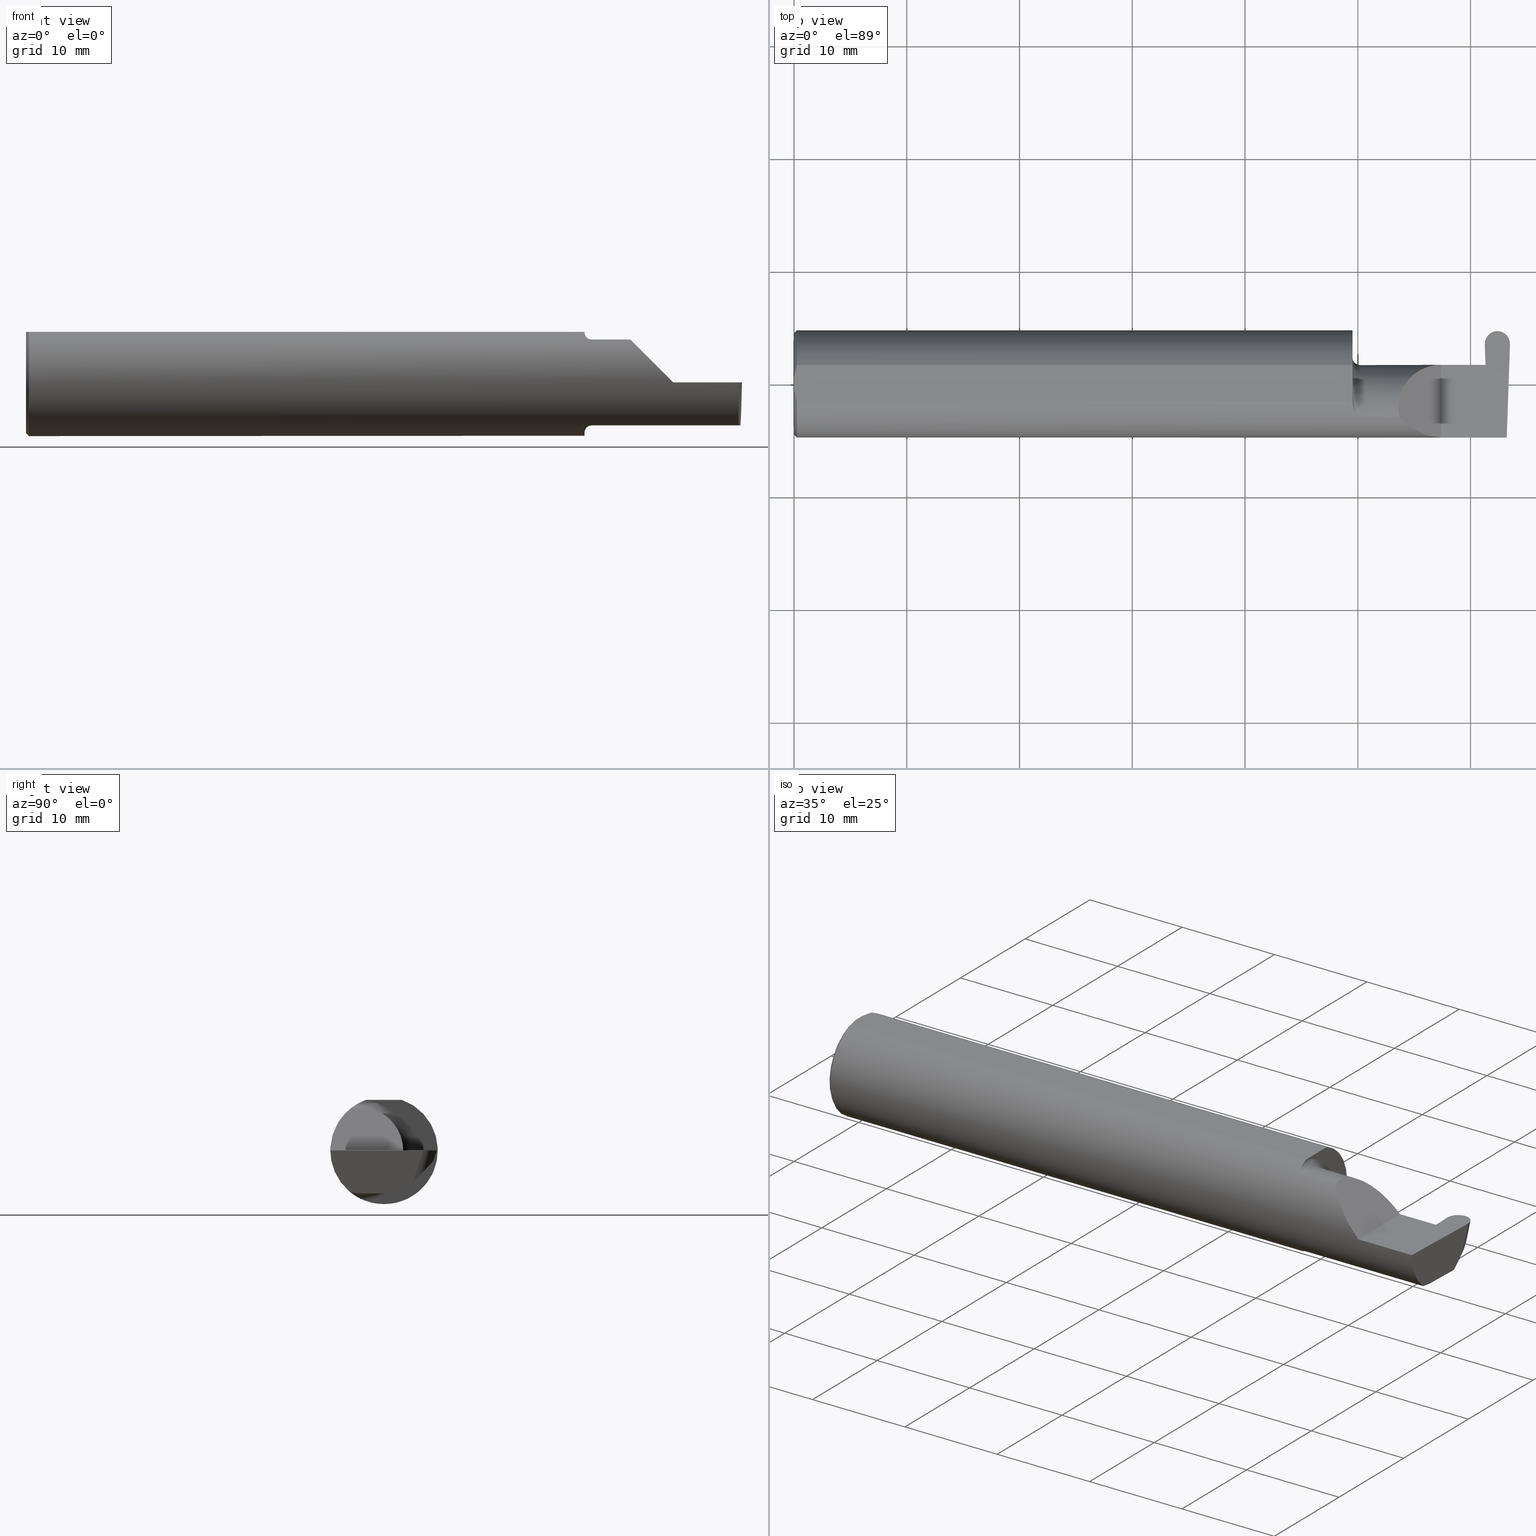
[diagram: canonical four-view strip — front | top / right | iso, engineering-drawing reading convention]
A machine part, canonical four-view strip (front | top / right | iso — engineering-drawing reading convention). The complete STEP part file that produces these views, byte-faithful:
ISO-10303-21;
HEADER;
FILE_DESCRIPTION (( 'STEP AP203' ),
    '1' );
FILE_NAME ('222194-GFR087-8.STEP',
    '2024-06-28T18:15:36',
    ( '' ),
    ( '' ),
    'SwSTEP 2.0',
    'SolidWorks 2024',
    '' );
FILE_SCHEMA (( 'CONFIG_CONTROL_DESIGN' ));
ENDSEC;

DATA;
#1 = AXIS2_PLACEMENT_3D ( 'NONE', #496, #169, #558 ) ;
#2 = DIRECTION ( 'NONE',  ( 1.000000000000000000, 0.000000000000000000, 0.000000000000000000 ) ) ;
#3 = DIRECTION ( 'NONE',  ( -1.000000000000000000, -0.000000000000000000, -0.000000000000000000 ) ) ;
#4 = CARTESIAN_POINT ( 'NONE',  ( 0.001616639753276218755, 0.03405189565400963680, 0.1763499999999999235 ) ) ;
#5 =( NAMED_UNIT ( * ) PLANE_ANGLE_UNIT ( ) SI_UNIT ( $, .RADIAN. ) );
#6 = FACE_OUTER_BOUND ( 'NONE', #566, .T. ) ;
#7 = CARTESIAN_POINT ( 'NONE',  ( 0.000000000000000000, 0.000000000000000000, 0.000000000000000000 ) ) ;
#8 = EDGE_LOOP ( 'NONE', ( #624, #511, #582, #270, #173, #238 ) ) ;
#9 = CARTESIAN_POINT ( 'NONE',  ( 2.193402845000000045, -0.1172600179964006090, -0.1461167706989303927 ) ) ;
#10 = CARTESIAN_POINT ( 'NONE',  ( 2.411832552795360574, 0.1390138764844879860, 0.000000000000000000 ) ) ;
#11 = AXIS2_PLACEMENT_3D ( 'NONE', #24, #469, #87 ) ;
#12 = CC_DESIGN_APPROVAL ( #450, ( #230 ) ) ;
#13 = DIRECTION ( 'NONE',  ( 0.000000000000000000, 0.000000000000000000, -1.000000000000000000 ) ) ;
#14 = CARTESIAN_POINT ( 'NONE',  ( 2.090221225029926355, -0.01530148607434163137, 0.1697787749700727100 ) ) ;
#15 = APPROVAL_DATE_TIME ( #506, #450 ) ;
#16 = VECTOR ( 'NONE', #475, 39.37007874015748143 ) ;
#17 = VECTOR ( 'NONE', #435, 39.37007874015748143 ) ;
#18 = VERTEX_POINT ( 'NONE', #106 ) ;
#19 = CARTESIAN_POINT ( 'NONE',  ( 0.009999999999999346217, 0.000000000000000000, 0.000000000000000000 ) ) ;
#20 = EDGE_CURVE ( 'NONE', #453, #21, #457, .T. ) ;
#21 = VERTEX_POINT ( 'NONE', #423 ) ;
#22 = CARTESIAN_POINT ( 'NONE',  ( 2.456309424548497322, 0.1846500000000000363, 0.000000000000000000 ) ) ;
#23 = VERTEX_POINT ( 'NONE', #534 ) ;
#24 = CARTESIAN_POINT ( 'NONE',  ( 0.009999999999999346217, 0.000000000000000000, 0.000000000000000000 ) ) ;
#25 = CC_DESIGN_PERSON_AND_ORGANIZATION_ASSIGNMENT ( #633, #294, ( #132 ) ) ;
#26 = PERSON_AND_ORGANIZATION ( #690, #40 ) ;
#27 = ORIENTED_EDGE ( 'NONE', *, *, #189, .T. ) ;
#28 = EDGE_CURVE ( 'NONE', #529, #573, #595, .T. ) ;
#29 = ORIENTED_EDGE ( 'NONE', *, *, #62, .T. ) ;
#30 = ORIENTED_EDGE ( 'NONE', *, *, #521, .F. ) ;
#31 = FACE_OUTER_BOUND ( 'NONE', #679, .T. ) ;
#32 = DIRECTION ( 'NONE',  ( -0.01299916717458333461, 0.7070470357949164564, 0.7070470357949245610 ) ) ;
#33 = ORIENTED_EDGE ( 'NONE', *, *, #657, .T. ) ;
#34 = DIRECTION ( 'NONE',  ( 0.000000000000000000, 0.000000000000000000, -1.000000000000000000 ) ) ;
#35 = ORIENTED_EDGE ( 'NONE', *, *, #129, .T. ) ;
#36 = APPLICATION_CONTEXT ( 'configuration controlled 3d designs of mechanical parts and assemblies' ) ;
#37 = CARTESIAN_POINT ( 'NONE',  ( 2.494604638945828956, 0.06030305154315079852, -0.1500000000000000500 ) ) ;
#38 = DIRECTION ( 'NONE',  ( 1.000000000000000000, 0.000000000000000000, 0.000000000000000000 ) ) ;
#39 = ORIENTED_EDGE ( 'NONE', *, *, #202, .T. ) ;
#40 = ORGANIZATION ( 'UNSPECIFIED', 'UNSPECIFIED', '' ) ;
#41 = DIRECTION ( 'NONE',  ( -1.000000000000000000, -3.697236809793670161E-17, -0.000000000000000000 ) ) ;
#42 = EDGE_CURVE ( 'NONE', #261, #334, #204, .T. ) ;
#43 = CARTESIAN_POINT ( 'NONE',  ( 1.969511795768554174, -0.1163687266324233971, -0.1468371510166789906 ) ) ;
#44 = CARTESIAN_POINT ( 'NONE',  ( 1.974999999999999867, -0.1172600179964006228, 0.1461167706989303650 ) ) ;
#45 = CARTESIAN_POINT ( 'NONE',  ( 2.489189135516857831, -0.09477667630339421667, -0.1500000000000000500 ) ) ;
#46 = CARTESIAN_POINT ( 'NONE',  ( 1.949999999999999956, -0.06851976604679065053, -0.1743704796142198643 ) ) ;
#47 = CARTESIAN_POINT ( 'NONE',  ( 2.150065971957465738, -0.1623470442677541759, 0.1099340280425336741 ) ) ;
#48 = CARTESIAN_POINT ( 'NONE',  ( 2.405147528298442694, 0.06655862405286415429, -0.005234924505382223224 ) ) ;
#49 = EDGE_LOOP ( 'NONE', ( #465, #33, #621, #394 ) ) ;
#50 = CARTESIAN_POINT ( 'NONE',  ( 2.733184360054361939, -0.08335000000000006293, -0.1500000000000000500 ) ) ;
#51 = CARTESIAN_POINT ( 'NONE',  ( 2.489588163846105484, -0.08335000000000006293, -0.1500000000000000500 ) ) ;
#52 = AXIS2_PLACEMENT_3D ( 'NONE', #428, #2, #13 ) ;
#53 = ORIENTED_EDGE ( 'NONE', *, *, #306, .T. ) ;
#54 = DIRECTION ( 'NONE',  ( 0.000000000000000000, 1.000000000000000000, 0.000000000000000000 ) ) ;
#55 = VECTOR ( 'NONE', #654, 39.37007874015748143 ) ;
#56 = VECTOR ( 'NONE', #332, 39.37007874015748143 ) ;
#57 = PRODUCT_DEFINITION_SHAPE ( 'NONE', 'NONE',  #230 ) ;
#58 = LINE ( 'NONE', #210, #56 ) ;
#59 = DIRECTION ( 'NONE',  ( 3.697236809793670161E-17, -1.000000000000000000, 0.000000000000000000 ) ) ;
#60 = VERTEX_POINT ( 'NONE', #550 ) ;
#61 = DIRECTION ( 'NONE',  ( 1.000000000000000000, 0.000000000000000000, -0.000000000000000000 ) ) ;
#62 = EDGE_CURVE ( 'NONE', #468, #261, #609, .T. ) ;
#63 = COORDINATED_UNIVERSAL_TIME_OFFSET ( 8, 0, .BEHIND. ) ;
#64 = EDGE_LOOP ( 'NONE', ( #355, #237, #126, #249, #551 ) ) ;
#65 = VECTOR ( 'NONE', #222, 39.37007874015748143 ) ;
#66 = CARTESIAN_POINT ( 'NONE',  ( 2.499906297085412898, 0.1370998259008695541, 0.000000000000000000 ) ) ;
#67 = CARTESIAN_POINT ( 'NONE',  ( 2.155331797197862720, 0.06665000000000004254, 0.1046682028021360955 ) ) ;
#68 = EDGE_CURVE ( 'NONE', #573, #299, #207, .T. ) ;
#69 = EDGE_CURVE ( 'NONE', #248, #405, #433, .T. ) ;
#70 = ORIENTED_EDGE ( 'NONE', *, *, #202, .F. ) ;
#71 = PLANE ( 'NONE',  #176 ) ;
#72 = DIRECTION ( 'NONE',  ( -0.02739170151059987929, -0.3089010440752013587, -0.9506996579664920288 ) ) ;
#73 = ORIENTED_EDGE ( 'NONE', *, *, #466, .T. ) ;
#74 = DIRECTION ( 'NONE',  ( -0.03701744261649742712, -0.7066221440565398915, -0.7066221440565478851 ) ) ;
#75 = APPROVAL_DATE_TIME ( #186, #619 ) ;
#76 = VERTEX_POINT ( 'NONE', #269 ) ;
#77 = AXIS2_PLACEMENT_3D ( 'NONE', #597, #590, #371 ) ;
#78 = CALENDAR_DATE ( 2024, 28, 6 ) ;
#79 = ORIENTED_EDGE ( 'NONE', *, *, #300, .T. ) ;
#80 = CALENDAR_DATE ( 2024, 28, 6 ) ;
#81 = ORIENTED_EDGE ( 'NONE', *, *, #240, .F. ) ;
#82 = CARTESIAN_POINT ( 'NONE',  ( 2.411899392914586659, 0.1370998259008695541, 0.000000000000000000 ) ) ;
#83 = ORIENTED_EDGE ( 'NONE', *, *, #657, .F. ) ;
#84 = LINE ( 'NONE', #596, #330 ) ;
#85 = CONICAL_SURFACE ( 'NONE', #52, 0.1773500000000005072, 0.7853981633974551624 ) ;
#86 = CIRCLE ( 'NONE', #668, 0.1873499999999999888 ) ;
#87 = DIRECTION ( 'NONE',  ( 0.000000000000000000, 0.000000000000000000, -1.000000000000000000 ) ) ;
#88 = EDGE_CURVE ( 'NONE', #18, #490, #632, .T. ) ;
#89 = ORIENTED_EDGE ( 'NONE', *, *, #504, .F. ) ;
#90 = DIRECTION ( 'NONE',  ( 0.000000000000000000, 0.000000000000000000, -1.000000000000000000 ) ) ;
#91 =( BOUNDED_CURVE ( )  B_SPLINE_CURVE ( 3, ( #120, #14, #67, #610 ),
 .UNSPECIFIED., .F., .T. ) 
 B_SPLINE_CURVE_WITH_KNOTS ( ( 4, 4 ),
 ( 6.055147272130142255, 7.853981633974482790 ),
 .UNSPECIFIED. ) 
 CURVE ( )  GEOMETRIC_REPRESENTATION_ITEM ( )  RATIONAL_B_SPLINE_CURVE ( ( 1.000000000000000000, 0.7480442670255268434, 0.7480442670255268434, 1.000000000000000000 ) ) 
 REPRESENTATION_ITEM ( '' )  );
#92 = DIRECTION ( 'NONE',  ( -3.697236809793670161E-17, 1.000000000000000000, 0.000000000000000000 ) ) ;
#93 = CARTESIAN_POINT ( 'NONE',  ( 1.963203859946833552, -0.1120371980050636623, -0.1501764597936560142 ) ) ;
#94 = DIRECTION ( 'NONE',  ( -0.02739170151059987582, -0.3089010440752013587, -0.9506996579664918068 ) ) ;
#95 = ORIENTED_EDGE ( 'NONE', *, *, #369, .T. ) ;
#96 = CARTESIAN_POINT ( 'NONE',  ( 0.000000000000000000, 0.06325108694718235836, 0.1763499999999999235 ) ) ;
#97 = CARTESIAN_POINT ( 'NONE',  ( 1.950358271039143832, -0.07873626113568077400, -0.1700887912276895508 ) ) ;
#98 = CARTESIAN_POINT ( 'NONE',  ( 2.456309424548497322, 0.1846500000000000363, 0.000000000000000000 ) ) ;
#99 = EDGE_CURVE ( 'NONE', #314, #546, #164, .T. ) ;
#100 = VECTOR ( 'NONE', #92, 39.37007874015748143 ) ;
#101 = FACE_OUTER_BOUND ( 'NONE', #578, .T. ) ;
#102 = ORIENTED_EDGE ( 'NONE', *, *, #615, .F. ) ;
#103 = FACE_OUTER_BOUND ( 'NONE', #508, .T. ) ;
#104 = CLOSED_SHELL ( 'NONE', ( #526, #536, #666, #563, #677, #452, #194, #349, #681, #180, #274, #370, #328, #547, #313, #110, #320, #663, #652 ) ) ;
#105 = CARTESIAN_POINT ( 'NONE',  ( 2.496782013450319582, 0.1018667288808076665, -0.1084363226623427101 ) ) ;
#106 = CARTESIAN_POINT ( 'NONE',  ( 0.000000000000000000, 0.01880691362239451242, 0.1763499999999999235 ) ) ;
#107 = CARTESIAN_POINT ( 'NONE',  ( 2.260000000000000231, -0.1873499999999999888, 2.939152317953647352E-17 ) ) ;
#108 = CARTESIAN_POINT ( 'NONE',  ( 2.405208445596533462, 0.06661954135095465857, -0.001744974835127408464 ) ) ;
#109 = DIRECTION ( 'NONE',  ( -0.03489949670249319069, -0.9993908270190959842, 0.000000000000000000 ) ) ;
#110 = ADVANCED_FACE ( 'NONE', ( #216 ), #505, .F. ) ;
#111 = CARTESIAN_POINT ( 'NONE',  ( 2.414359555045604289, 0.06664999999999991764, -9.645561665750322649E-21 ) ) ;
#112 = VECTOR ( 'NONE', #408, 39.37007874015747433 ) ;
#113 = APPLICATION_PROTOCOL_DEFINITION ( 'international standard', 'config_control_design', 1994, #411 ) ;
#114 = FACE_OUTER_BOUND ( 'NONE', #156, .T. ) ;
#115 = DIRECTION ( 'NONE',  ( 0.000000000000000000, 0.000000000000000000, 1.000000000000000000 ) ) ;
#116 = EDGE_CURVE ( 'NONE', #123, #321, #680, .T. ) ;
#117 =( LENGTH_UNIT ( ) NAMED_UNIT ( * ) SI_UNIT ( $, .METRE. ) );
#118 = ORIENTED_EDGE ( 'NONE', *, *, #306, .F. ) ;
#119 = CARTESIAN_POINT ( 'NONE',  ( 1.949999999999999956, -0.06851976604679065053, 0.1743704796142198643 ) ) ;
#120 = CARTESIAN_POINT ( 'NONE',  ( 2.113883229301068312, -0.1172600179964006784, 0.1461167706989302539 ) ) ;
#121 = CARTESIAN_POINT ( 'NONE',  ( 2.455902844999999779, 0.1800649307963962942, -0.01411139200474042545 ) ) ;
#122 = B_SPLINE_CURVE_WITH_KNOTS ( 'NONE', 3,
 ( #48, #253, #108, #702 ),
 .UNSPECIFIED., .F., .F.,
 ( 4, 4 ),
 ( 0.000000000000000000, 1.000000000000000000 ),
 .UNSPECIFIED. ) ;
#123 = VERTEX_POINT ( 'NONE', #227 ) ;
#124 = VECTOR ( 'NONE', #572, 39.37007874015748143 ) ;
#125 = CARTESIAN_POINT ( 'NONE',  ( 1.965004157323697376, -0.1137044537483315743, 0.1489098419202428414 ) ) ;
#126 = ORIENTED_EDGE ( 'NONE', *, *, #116, .F. ) ;
#127 = CARTESIAN_POINT ( 'NONE',  ( 2.411899392914586659, 0.1370998259008695541, 0.000000000000000000 ) ) ;
#128 = ORIENTED_EDGE ( 'NONE', *, *, #674, .F. ) ;
#129 = EDGE_CURVE ( 'NONE', #218, #123, #480, .T. ) ;
#130 = ORIENTED_EDGE ( 'NONE', *, *, #88, .T. ) ;
#131 = VECTOR ( 'NONE', #531, 39.37007874015748143 ) ;
#132 = PRODUCT_DEFINITION_FORMATION_WITH_SPECIFIED_SOURCE ( 'ANY', '', #586, .NOT_KNOWN. ) ;
#133 = PERSON_AND_ORGANIZATION ( #690, #40 ) ;
#134 = ORIENTED_EDGE ( 'NONE', *, *, #580, .T. ) ;
#135 = AXIS2_PLACEMENT_3D ( 'NONE', #462, #193, #406 ) ;
#136 = CARTESIAN_POINT ( 'NONE',  ( 2.411883147359661361, 0.1372830298860648335, 0.0005638438891804070001 ) ) ;
#137 = ORIENTED_EDGE ( 'NONE', *, *, #387, .F. ) ;
#138 = DIRECTION ( 'NONE',  ( -1.000000000000000000, -3.697236809793670161E-17, -0.000000000000000000 ) ) ;
#139 = EDGE_CURVE ( 'NONE', #177, #461, #84, .T. ) ;
#140 = CARTESIAN_POINT ( 'NONE',  ( 0.000000000000000000, -0.06325108694718235836, 0.1763499999999999235 ) ) ;
#141 = ORIENTED_EDGE ( 'NONE', *, *, #615, .T. ) ;
#142 = AXIS2_PLACEMENT_3D ( 'NONE', #614, #115, #61 ) ;
#143 = DIRECTION ( 'NONE',  ( 0.000000000000000000, -0.7071067811865433539, -0.7071067811865515695 ) ) ;
#144 = CARTESIAN_POINT ( 'NONE',  ( 0.000000000000000000, -0.01880691362239451242, 0.1763499999999999235 ) ) ;
#145 = VECTOR ( 'NONE', #109, 39.37007874015748854 ) ;
#146 = CARTESIAN_POINT ( 'NONE',  ( 2.414359555045604289, 0.06664999999999991764, 0.000000000000000000 ) ) ;
#147 = DIRECTION ( 'NONE',  ( 0.000000000000000000, 0.9510565162951533091, -0.3090169943749481729 ) ) ;
#148 = EDGE_LOOP ( 'NONE', ( #482, #640, #499, #228 ) ) ;
#149 = CARTESIAN_POINT ( 'NONE',  ( 0.000000000000000000, 0.000000000000000000, 0.000000000000000000 ) ) ;
#150 = PLANE ( 'NONE',  #398 ) ;
#151 = CARTESIAN_POINT ( 'NONE',  ( 1.952960551809340917, -0.09317341542745735672, -0.1626248379125196930 ) ) ;
#152 = CARTESIAN_POINT ( 'NONE',  ( 2.453653113715916767, 0.2054355468668520590, 0.06397133540329499879 ) ) ;
#153 = AXIS2_PLACEMENT_3D ( 'NONE', #271, #491, #213 ) ;
#154 = LOCAL_TIME ( 11, 15, 36.00000000000000000, #459 ) ;
#155 = CARTESIAN_POINT ( 'NONE',  ( 2.455849646417702203, 0.1388183738650295151, 0.001331749772420890180 ) ) ;
#156 = EDGE_LOOP ( 'NONE', ( #137, #672, #130, #591 ) ) ;
#157 = CC_DESIGN_SECURITY_CLASSIFICATION ( #655, ( #132 ) ) ;
#158 = LINE ( 'NONE', #553, #170 ) ;
#159 = CARTESIAN_POINT ( 'NONE',  ( -0.001039370078740541395, 0.1846500000000000363, 0.000000000000000000 ) ) ;
#160 =( BOUNDED_CURVE ( )  B_SPLINE_CURVE ( 3, ( #589, #471, #698, #641 ),
 .UNSPECIFIED., .F., .T. ) 
 B_SPLINE_CURVE_WITH_KNOTS ( ( 4, 4 ),
 ( 5.852427379562185727, 6.746954780470634461 ),
 .UNSPECIFIED. ) 
 CURVE ( )  GEOMETRIC_REPRESENTATION_ITEM ( )  RATIONAL_B_SPLINE_CURVE ( ( 1.000000000000000000, 0.9344226172588800949, 0.9344226172588800949, 1.000000000000000000 ) ) 
 REPRESENTATION_ITEM ( '' )  );
#161 = CARTESIAN_POINT ( 'NONE',  ( 1.974999999999999867, -0.1172600179964006090, -0.1461167706989303927 ) ) ;
#162 = DIRECTION ( 'NONE',  ( -0.03489949670249400254, 0.9993908270190959842, 0.000000000000000000 ) ) ;
#163 = CARTESIAN_POINT ( 'NONE',  ( 2.454465662695322070, 0.1220110860126060043, -0.05039576335554842024 ) ) ;
#164 = LINE ( 'NONE', #564, #555 ) ;
#165 = DIRECTION ( 'NONE',  ( 1.000000000000000000, -0.000000000000000000, -0.000000000000000000 ) ) ;
#166 = DIRECTION ( 'NONE',  ( 0.000000000000000000, 0.000000000000000000, 1.000000000000000000 ) ) ;
#167 = AXIS2_PLACEMENT_3D ( 'NONE', #319, #38, #705 ) ;
#168 = FACE_OUTER_BOUND ( 'NONE', #148, .T. ) ;
#169 = DIRECTION ( 'NONE',  ( -1.224646799147353947E-16, 0.000000000000000000, -1.000000000000000000 ) ) ;
#170 = VECTOR ( 'NONE', #165, 39.37007874015748143 ) ;
#171 = ORIENTED_EDGE ( 'NONE', *, *, #139, .F. ) ;
#172 = DIRECTION ( 'NONE',  ( -0.9992386149554828290, 0.03489418134010589118, 0.01745240643728358451 ) ) ;
#173 = ORIENTED_EDGE ( 'NONE', *, *, #600, .T. ) ;
#174 = CARTESIAN_POINT ( 'NONE',  ( 2.429140065301251372, 0.1846500000000001473, 8.878101985489642774E-18 ) ) ;
#175 = MANIFOLD_SOLID_BREP ( 'Radii', #104 ) ;
#176 = AXIS2_PLACEMENT_3D ( 'NONE', #293, #229, #446 ) ;
#177 = VERTEX_POINT ( 'NONE', #44 ) ;
#178 = DIRECTION ( 'NONE',  ( -0.01806954526206909148, 0.01744955702544859211, 0.9996844524616943506 ) ) ;
#179 = APPROVAL_PERSON_ORGANIZATION ( #26, #199, #354 ) ;
#180 = ADVANCED_FACE ( 'NONE', ( #585 ), #205, .T. ) ;
#181 = VECTOR ( 'NONE', #706, 39.37007874015748854 ) ;
#182 = ORIENTED_EDGE ( 'NONE', *, *, #575, .F. ) ;
#183 = DATE_AND_TIME ( #78, #154 ) ;
#184 = EDGE_LOOP ( 'NONE', ( #518, #27, #385, #602, #171, #628, #325, #292, #305, #588, #235, #118, #697 ) ) ;
#185 =( BOUNDED_CURVE ( )  B_SPLINE_CURVE ( 3, ( #477, #549, #45, #51 ),
 .UNSPECIFIED., .F., .T. ) 
 B_SPLINE_CURVE_WITH_KNOTS ( ( 4, 4 ),
 ( 0.8789888184544055738, 1.107026853503848773 ),
 .UNSPECIFIED. ) 
 CURVE ( )  GEOMETRIC_REPRESENTATION_ITEM ( )  RATIONAL_B_SPLINE_CURVE ( ( 1.000000000000000000, 0.9956712472009929815, 0.9956712472009929815, 1.000000000000000000 ) ) 
 REPRESENTATION_ITEM ( '' )  );
#186 = DATE_AND_TIME ( #297, #400 ) ;
#187 = VERTEX_POINT ( 'NONE', #37 ) ;
#188 = VECTOR ( 'NONE', #3, 39.37007874015748143 ) ;
#189 = EDGE_CURVE ( 'NONE', #376, #299, #160, .T. ) ;
#190 = DIRECTION ( 'NONE',  ( -1.000000000000000000, -3.697236809793670161E-17, -0.000000000000000000 ) ) ;
#191 = PERSON_AND_ORGANIZATION_ROLE ( 'classification_officer' ) ;
#192 = VERTEX_POINT ( 'NONE', #146 ) ;
#193 = DIRECTION ( 'NONE',  ( 1.000000000000000000, 3.697236809793670161E-17, 0.000000000000000000 ) ) ;
#194 = ADVANCED_FACE ( 'NONE', ( #103 ), #362, .F. ) ;
#195 = CARTESIAN_POINT ( 'NONE',  ( 1.951829077486399555, -0.08839624499054642148, 0.1652742498708037466 ) ) ;
#196 = CALENDAR_DATE ( 2024, 28, 6 ) ;
#197 = ORIENTED_EDGE ( 'NONE', *, *, #478, .F. ) ;
#198 = CARTESIAN_POINT ( 'NONE',  ( 2.415023676549680420, 0.1018667288808076526, -0.1084363226623427379 ) ) ;
#199 = APPROVAL ( #638, 'UNSPECIFIED' ) ;
#200 = DIRECTION ( 'NONE',  ( 0.000000000000000000, 0.000000000000000000, -1.000000000000000000 ) ) ;
#201 = CARTESIAN_POINT ( 'NONE',  ( 0.005151108632379595466, -0.04888864921576189376, 0.1763499999999999235 ) ) ;
#202 = EDGE_CURVE ( 'NONE', #123, #372, #467, .T. ) ;
#203 = DIRECTION ( 'NONE',  ( -0.7071067811865509034, 0.000000000000000000, 0.7071067811865440200 ) ) ;
#204 = LINE ( 'NONE', #417, #55 ) ;
#205 = CYLINDRICAL_SURFACE ( 'NONE', #258, 0.1500000000000000500 ) ;
#206 = DIRECTION ( 'NONE',  ( 0.000000000000000000, -0.7071067811865516806, 0.7071067811865434649 ) ) ;
#207 = LINE ( 'NONE', #209, #145 ) ;
#208 = FACE_OUTER_BOUND ( 'NONE', #605, .T. ) ;
#209 = CARTESIAN_POINT ( 'NONE',  ( 2.499973137204639428, 0.1390138764844880415, 0.000000000000000000 ) ) ;
#210 = CARTESIAN_POINT ( 'NONE',  ( 0.000000000000000000, 0.1873499999999998500, 0.1763499999999999235 ) ) ;
#211 = CARTESIAN_POINT ( 'NONE',  ( 2.412901126908978622, 0.1423838600483241235, -0.06791919149482582296 ) ) ;
#212 = EDGE_LOOP ( 'NONE', ( #233, #420, #265, #79 ) ) ;
#213 = DIRECTION ( 'NONE',  ( 0.000000000000000000, -0.3090169943749481729, -0.9510565162951533091 ) ) ;
#214 = LINE ( 'NONE', #659, #279 ) ;
#215 = CARTESIAN_POINT ( 'NONE',  ( 2.498904563091020492, 0.1423838600483239292, -0.06791919149482598950 ) ) ;
#216 = FACE_OUTER_BOUND ( 'NONE', #8, .T. ) ;
#217 =( NAMED_UNIT ( * ) SI_UNIT ( $, .STERADIAN. ) SOLID_ANGLE_UNIT ( ) );
#218 = VERTEX_POINT ( 'NONE', #98 ) ;
#219 = DIRECTION ( 'NONE',  ( -1.000000000000000000, -3.697236809793670161E-17, -0.000000000000000000 ) ) ;
#220 = CYLINDRICAL_SURFACE ( 'NONE', #244, 0.04399999999999999051 ) ;
#221 = AXIS2_PLACEMENT_3D ( 'NONE', #439, #664, #382 ) ;
#222 = DIRECTION ( 'NONE',  ( -0.03489949670249400948, 0.9993908270190959842, -0.000000000000000000 ) ) ;
#223 = ORIENTED_EDGE ( 'NONE', *, *, #262, .T. ) ;
#224 = CARTESIAN_POINT ( 'NONE',  ( 2.455496265451502236, 0.1846500000000000363, 0.000000000000000000 ) ) ;
#225 = AXIS2_PLACEMENT_3D ( 'NONE', #272, #172, #492 ) ;
#226 = AXIS2_PLACEMENT_3D ( 'NONE', #660, #671, #162 ) ;
#227 = CARTESIAN_POINT ( 'NONE',  ( 2.455902844999999779, 0.1800649307963962942, -0.01411139200474042545 ) ) ;
#228 = ORIENTED_EDGE ( 'NONE', *, *, #683, .T. ) ;
#229 = DIRECTION ( 'NONE',  ( 0.000000000000000000, 0.000000000000000000, 1.000000000000000000 ) ) ;
#230 = PRODUCT_DEFINITION ( 'UNKNOWN', '', #132, #317 ) ;
#231 = CYLINDRICAL_SURFACE ( 'NONE', #528, 0.1873499999999999888 ) ;
#232 = PERSON_AND_ORGANIZATION ( #690, #40 ) ;
#233 = ORIENTED_EDGE ( 'NONE', *, *, #365, .F. ) ;
#234 = FACE_OUTER_BOUND ( 'NONE', #251, .T. ) ;
#235 = ORIENTED_EDGE ( 'NONE', *, *, #561, .F. ) ;
#236 = SHAPE_DEFINITION_REPRESENTATION ( #57, #415 ) ;
#237 = ORIENTED_EDGE ( 'NONE', *, *, #275, .F. ) ;
#238 = ORIENTED_EDGE ( 'NONE', *, *, #683, .F. ) ;
#239 = CARTESIAN_POINT ( 'NONE',  ( 1.958475602106621638, -0.1064978748893404686, 0.1542035505680384444 ) ) ;
#240 = EDGE_CURVE ( 'NONE', #546, #296, #308, .T. ) ;
#241 = DATE_TIME_ROLE ( 'creation_date' ) ;
#242 = ORIENTED_EDGE ( 'NONE', *, *, #600, .F. ) ;
#243 = CIRCLE ( 'NONE', #11, 0.1873499999999999888 ) ;
#244 = AXIS2_PLACEMENT_3D ( 'NONE', #163, #72, #503 ) ;
#245 = PLANE ( 'NONE',  #135 ) ;
#246 = CARTESIAN_POINT ( 'NONE',  ( 2.497044125482537957, 0.1068701584290903256, -0.1034328931140599817 ) ) ;
#247 = APPROVAL_DATE_TIME ( #409, #199 ) ;
#248 = VERTEX_POINT ( 'NONE', #259 ) ;
#249 = ORIENTED_EDGE ( 'NONE', *, *, #129, .F. ) ;
#250 = CARTESIAN_POINT ( 'NONE',  ( 0.009999999999999346217, 0.06325108694718235836, 0.1763499999999999235 ) ) ;
#251 = EDGE_LOOP ( 'NONE', ( #197, #522, #288, #532 ) ) ;
#252 = EDGE_CURVE ( 'NONE', #468, #23, #421, .T. ) ;
#253 = CARTESIAN_POINT ( 'NONE',  ( 2.405177986947488300, 0.06658908270190941336, -0.003489949670254817362 ) ) ;
#254 = ORIENTED_EDGE ( 'NONE', *, *, #561, .T. ) ;
#255 = CARTESIAN_POINT ( 'NONE',  ( 2.455902844999999779, 0.1722946655495198598, -0.03800838599362974662 ) ) ;
#256 = DIRECTION ( 'NONE',  ( 0.000000000000000000, -1.000000000000000000, 0.000000000000000000 ) ) ;
#257 = CARTESIAN_POINT ( 'NONE',  ( 2.415998328610626800, 0.06357628547474564185, -0.09063792740366213851 ) ) ;
#258 = AXIS2_PLACEMENT_3D ( 'NONE', #648, #138, #704 ) ;
#259 = CARTESIAN_POINT ( 'NONE',  ( 0.009999999999999346217, -0.06325108694718235836, 0.1763499999999999235 ) ) ;
#260 = DIRECTION ( 'NONE',  ( -0.03701744261649800999, 0.7066221440565398915, 0.7066221440565479961 ) ) ;
#261 = VERTEX_POINT ( 'NONE', #688 ) ;
#262 = EDGE_CURVE ( 'NONE', #18, #307, #286, .T. ) ;
#263 = CARTESIAN_POINT ( 'NONE',  ( 2.113883229301068312, -0.1172600179964006784, 0.1461167706989302539 ) ) ;
#264 = CARTESIAN_POINT ( 'NONE',  ( -0.001039370078740541395, 0.1723030515431495657, -0.03799999999999999906 ) ) ;
#265 = ORIENTED_EDGE ( 'NONE', *, *, #521, .T. ) ;
#266 = FACE_OUTER_BOUND ( 'NONE', #440, .T. ) ;
#267 = VECTOR ( 'NONE', #32, 39.37007874015748143 ) ;
#268 = DIRECTION ( 'NONE',  ( -1.000000000000000000, -0.000000000000000000, -0.000000000000000000 ) ) ;
#269 = CARTESIAN_POINT ( 'NONE',  ( 1.949999999999999956, -0.06325108694718283020, 0.1763499999999999235 ) ) ;
#270 = ORIENTED_EDGE ( 'NONE', *, *, #189, .F. ) ;
#271 = CARTESIAN_POINT ( 'NONE',  ( -0.001039370078740541395, 0.1846500000000000363, 0.000000000000000000 ) ) ;
#272 = CARTESIAN_POINT ( 'NONE',  ( 2.499973137204639428, 0.1390138764844880415, 0.000000000000000000 ) ) ;
#273 = DIRECTION ( 'NONE',  ( 1.000000000000000000, 3.697236809793670161E-17, 0.000000000000000000 ) ) ;
#274 = ADVANCED_FACE ( 'NONE', ( #31 ), #245, .T. ) ;
#275 = EDGE_CURVE ( 'NONE', #321, #529, #395, .T. ) ;
#276 = PERSON_AND_ORGANIZATION_ROLE ( 'design_owner' ) ;
#277 = VERTEX_POINT ( 'NONE', #198 ) ;
#278 = CARTESIAN_POINT ( 'NONE',  ( 2.488576259503493926, -0.1873499999999999888, 0.000000000000000000 ) ) ;
#279 = VECTOR ( 'NONE', #260, 39.37007874015748143 ) ;
#280 = DIRECTION ( 'NONE',  ( -0.000000000000000000, 1.000000000000000000, -0.000000000000000000 ) ) ;
#281 = CALENDAR_DATE ( 2024, 28, 6 ) ;
#282 = PRODUCT_RELATED_PRODUCT_CATEGORY ( 'detail', '', ( #586 ) ) ;
#283 = ORIENTED_EDGE ( 'NONE', *, *, #643, .T. ) ;
#284 = CARTESIAN_POINT ( 'NONE',  ( 1.952945243422982369, -0.09312071749437422774, 0.1626553472577906556 ) ) ;
#285 =( BOUNDED_CURVE ( )  B_SPLINE_CURVE ( 3, ( #66, #289, #512, #22 ),
 .UNSPECIFIED., .F., .T. ) 
 B_SPLINE_CURVE_WITH_KNOTS ( ( 4, 4 ),
 ( 1.627103621474502049, 3.225696776093220475 ),
 .UNSPECIFIED. ) 
 CURVE ( )  GEOMETRIC_REPRESENTATION_ITEM ( )  RATIONAL_B_SPLINE_CURVE ( ( 1.000000000000000000, 0.7981407609938095948, 0.7981407609938095948, 1.000000000000000000 ) ) 
 REPRESENTATION_ITEM ( '' )  );
#286 = CIRCLE ( 'NONE', #298, 0.1773500000000005072 ) ;
#287 = PERSON_AND_ORGANIZATION ( #690, #40 ) ;
#288 = ORIENTED_EDGE ( 'NONE', *, *, #391, .F. ) ;
#289 = CARTESIAN_POINT ( 'NONE',  ( 2.500873303789769242, 0.1647912748130947180, 3.031548046095857169E-18 ) ) ;
#290 = EDGE_CURVE ( 'NONE', #405, #18, #58, .T. ) ;
#291 = FACE_OUTER_BOUND ( 'NONE', #64, .T. ) ;
#292 = ORIENTED_EDGE ( 'NONE', *, *, #476, .F. ) ;
#293 = CARTESIAN_POINT ( 'NONE',  ( 2.876828993045917215, 0.1873499999999998500, 0.1763499999999999235 ) ) ;
#294 = PERSON_AND_ORGANIZATION_ROLE ( 'design_supplier' ) ;
#295 = AXIS2_PLACEMENT_3D ( 'NONE', #19, #583, #200 ) ;
#296 = VERTEX_POINT ( 'NONE', #386 ) ;
#297 = CALENDAR_DATE ( 2024, 28, 6 ) ;
#298 = AXIS2_PLACEMENT_3D ( 'NONE', #651, #368, #523 ) ;
#299 = VERTEX_POINT ( 'NONE', #278 ) ;
#300 = EDGE_CURVE ( 'NONE', #296, #192, #158, .T. ) ;
#301 = CARTESIAN_POINT ( 'NONE',  ( 0.000000000000000000, 0.000000000000000000, 0.000000000000000000 ) ) ;
#302 = ORIENTED_EDGE ( 'NONE', *, *, #593, .T. ) ;
#303 = DIRECTION ( 'NONE',  ( 1.000000000000000000, 3.697236809793670161E-17, 0.000000000000000000 ) ) ;
#304 = FACE_OUTER_BOUND ( 'NONE', #647, .T. ) ;
#305 = ORIENTED_EDGE ( 'NONE', *, *, #391, .T. ) ;
#306 = EDGE_CURVE ( 'NONE', #21, #682, #351, .T. ) ;
#307 = VERTEX_POINT ( 'NONE', #373 ) ;
#308 = LINE ( 'NONE', #418, #315 ) ;
#309 = CARTESIAN_POINT ( 'NONE',  ( 2.455902844999999779, 0.1722946655495198598, -0.03800838599362974662 ) ) ;
#310 = CARTESIAN_POINT ( 'NONE',  ( 2.417117327835069940, -0.08334999999999997966, -0.1500000000000000500 ) ) ;
#311 = CIRCLE ( 'NONE', #685, 0.1500000000000000500 ) ;
#312 = CARTESIAN_POINT ( 'NONE',  ( -0.001039370078740541395, 0.06030305154315079158, -0.1500000000000000500 ) ) ;
#313 = ADVANCED_FACE ( 'NONE', ( #560 ), #500, .F. ) ;
#314 = VERTEX_POINT ( 'NONE', #107 ) ;
#315 = VECTOR ( 'NONE', #535, 39.37007874015748143 ) ;
#316 = CARTESIAN_POINT ( 'NONE',  ( 2.260000000000000231, -0.1873499999999999888, 2.939152317953647352E-17 ) ) ;
#317 = DESIGN_CONTEXT ( 'detailed design', #411, 'design' ) ;
#318 = EDGE_CURVE ( 'NONE', #340, #468, #548, .T. ) ;
#319 = CARTESIAN_POINT ( 'NONE',  ( 0.000000000000000000, 0.000000000000000000, 0.000000000000000000 ) ) ;
#320 = ADVANCED_FACE ( 'NONE', ( #266 ), #669, .F. ) ;
#321 = VERTEX_POINT ( 'NONE', #487 ) ;
#322 = CARTESIAN_POINT ( 'NONE',  ( 2.455902844999999779, 0.1722946655495198598, -0.03800838599362974662 ) ) ;
#323 = CARTESIAN_POINT ( 'NONE',  ( 2.415023676549680420, 0.1018667288808076526, -0.1084363226623427379 ) ) ;
#324 = CARTESIAN_POINT ( 'NONE',  ( 2.417090374579074386, 0.002105059811797841893, -0.1500000000000000777 ) ) ;
#325 = ORIENTED_EDGE ( 'NONE', *, *, #643, .F. ) ;
#326 = LINE ( 'NONE', #9, #567 ) ;
#327 = LINE ( 'NONE', #10, #65 ) ;
#328 = ADVANCED_FACE ( 'NONE', ( #6 ), #377, .F. ) ;
#329 = LINE ( 'NONE', #111, #486 ) ;
#330 = VECTOR ( 'NONE', #303, 39.37007874015748143 ) ;
#331 = ORIENTED_EDGE ( 'NONE', *, *, #365, .T. ) ;
#332 = DIRECTION ( 'NONE',  ( -0.000000000000000000, 1.000000000000000000, -0.000000000000000000 ) ) ;
#333 = MECHANICAL_CONTEXT ( 'NONE', #36, 'mechanical' ) ;
#334 = VERTEX_POINT ( 'NONE', #494 ) ;
#335 = CARTESIAN_POINT ( 'NONE',  ( 2.455496265451502236, 0.1846500000000000363, 0.000000000000000000 ) ) ;
#336 = AXIS2_PLACEMENT_3D ( 'NONE', #301, #574, #34 ) ;
#337 = CARTESIAN_POINT ( 'NONE',  ( 1.974999999999999867, -0.08334999999999999354, 0.000000000000000000 ) ) ;
#338 = LOCAL_TIME ( 11, 15, 36.00000000000000000, #404 ) ;
#339 = CARTESIAN_POINT ( 'NONE',  ( 2.455902844999999779, 0.1774764172755834701, -0.02207801745350155415 ) ) ;
#340 = VERTEX_POINT ( 'NONE', #380 ) ;
#341 = CARTESIAN_POINT ( 'NONE',  ( 2.414604620902816468, 0.1945090424343657032, -0.01579400910878360140 ) ) ;
#342 = CARTESIAN_POINT ( 'NONE',  ( 1.949999999999999956, 0.06325108694718235836, 0.1763499999999999235 ) ) ;
#343 = ORIENTED_EDGE ( 'NONE', *, *, #88, .F. ) ;
#344 = CARTESIAN_POINT ( 'NONE',  ( 1.949999999999999956, -0.08334999999999999354, 0.000000000000000000 ) ) ;
#345 = ORIENTED_EDGE ( 'NONE', *, *, #629, .T. ) ;
#346 = COORDINATED_UNIVERSAL_TIME_OFFSET ( 8, 0, .BEHIND. ) ;
#347 = AXIS2_PLACEMENT_3D ( 'NONE', #155, #533, #147 ) ;
#348 = ORIENTED_EDGE ( 'NONE', *, *, #240, .T. ) ;
#349 = ADVANCED_FACE ( 'NONE', ( #114 ), #85, .T. ) ;
#350 = PERSON_AND_ORGANIZATION_ROLE ( 'creator' ) ;
#351 = CIRCLE ( 'NONE', #579, 0.1873499999999999888 ) ;
#352 = VERTEX_POINT ( 'NONE', #607 ) ;
#353 = CARTESIAN_POINT ( 'NONE',  ( 1.972161949849308593, -0.1172600179964061462, 0.1461167706989260351 ) ) ;
#354 = APPROVAL_ROLE ( '' ) ;
#355 = ORIENTED_EDGE ( 'NONE', *, *, #28, .F. ) ;
#356 = CARTESIAN_POINT ( 'NONE',  ( 2.454465662695322070, 0.1638575727295927265, -0.06399251110804612952 ) ) ;
#357 = PERSON_AND_ORGANIZATION ( #690, #40 ) ;
#358 = EDGE_LOOP ( 'NONE', ( #634, #427, #448, #367, #81, #401, #383, #361, #410 ) ) ;
#359 = AXIS2_PLACEMENT_3D ( 'NONE', #483, #662, #432 ) ;
#360 = CYLINDRICAL_SURFACE ( 'NONE', #347, 0.04399999999999999051 ) ;
#361 = ORIENTED_EDGE ( 'NONE', *, *, #68, .F. ) ;
#362 = PLANE ( 'NONE',  #443 ) ;
#363 = CARTESIAN_POINT ( 'NONE',  ( 1.974999999999999867, -0.08334999999999999354, 0.000000000000000000 ) ) ;
#364 = CARTESIAN_POINT ( 'NONE',  ( 1.965028532764137914, -0.1137241120808233780, -0.1488947809299405178 ) ) ;
#365 = EDGE_CURVE ( 'NONE', #261, #192, #329, .T. ) ;
#366 = CARTESIAN_POINT ( 'NONE',  ( 1.949999999999999956, 0.1873499999999998222, 0.1763499999999999235 ) ) ;
#367 = ORIENTED_EDGE ( 'NONE', *, *, #300, .F. ) ;
#368 = DIRECTION ( 'NONE',  ( -1.000000000000000000, -0.000000000000000000, -0.000000000000000000 ) ) ;
#369 = EDGE_CURVE ( 'NONE', #376, #453, #326, .T. ) ;
#370 = ADVANCED_FACE ( 'NONE', ( #168 ), #384, .F. ) ;
#371 = DIRECTION ( 'NONE',  ( 0.000000000000000000, -0.01745240643728358451, -0.9998476951563912696 ) ) ;
#372 = VERTEX_POINT ( 'NONE', #224 ) ;
#373 = CARTESIAN_POINT ( 'NONE',  ( 0.000000000000000000, 0.000000000000000000, -0.1773500000000005072 ) ) ;
#374 = DIRECTION ( 'NONE',  ( 0.000000000000000000, 1.000000000000000000, 0.000000000000000000 ) ) ;
#375 = CARTESIAN_POINT ( 'NONE',  ( 2.499922542640338197, 0.1372830298860648612, 0.0005638438891804186011 ) ) ;
#376 = VERTEX_POINT ( 'NONE', #441 ) ;
#377 = PLANE ( 'NONE',  #153 ) ;
#378 = DIRECTION ( 'NONE',  ( -1.000000000000000000, -3.697236809793670161E-17, -0.000000000000000000 ) ) ;
#379 = EDGE_CURVE ( 'NONE', #314, #461, #635, .T. ) ;
#380 = CARTESIAN_POINT ( 'NONE',  ( 2.489588163846105484, -0.08335000000000006293, -0.1500000000000000500 ) ) ;
#381 = VECTOR ( 'NONE', #74, 39.37007874015748854 ) ;
#382 = DIRECTION ( 'NONE',  ( 1.000000000000000000, 0.000000000000000000, 0.000000000000000000 ) ) ;
#383 = ORIENTED_EDGE ( 'NONE', *, *, #612, .F. ) ;
#384 = PLANE ( 'NONE',  #142 ) ;
#385 = ORIENTED_EDGE ( 'NONE', *, *, #612, .T. ) ;
#386 = CARTESIAN_POINT ( 'NONE',  ( 2.405238904245578624, 0.06664999999999991764, 0.000000000000000000 ) ) ;
#387 = EDGE_CURVE ( 'NONE', #307, #352, #618, .T. ) ;
#388 = FACE_OUTER_BOUND ( 'NONE', #358, .T. ) ;
#389 = ORIENTED_EDGE ( 'NONE', *, *, #290, .F. ) ;
#390 = CARTESIAN_POINT ( 'NONE',  ( 1.969481469043492750, -0.1163560528186165510, 0.1468472430636323378 ) ) ;
#391 = EDGE_CURVE ( 'NONE', #248, #352, #243, .T. ) ;
#392 = ORIENTED_EDGE ( 'NONE', *, *, #99, .T. ) ;
#393 = LINE ( 'NONE', #246, #381 ) ;
#394 = ORIENTED_EDGE ( 'NONE', *, *, #466, .F. ) ;
#395 =( BOUNDED_CURVE ( )  B_SPLINE_CURVE ( 3, ( #322, #656, #215, #608 ),
 .UNSPECIFIED., .F., .T. ) 
 B_SPLINE_CURVE_WITH_KNOTS ( ( 4, 4 ),
 ( 3.143280914105126556, 4.726229945297543367 ),
 .UNSPECIFIED. ) 
 CURVE ( )  GEOMETRIC_REPRESENTATION_ITEM ( )  RATIONAL_B_SPLINE_CURVE ( ( 1.000000000000000000, 0.8018647492693391499, 0.8018647492693391499, 1.000000000000000000 ) ) 
 REPRESENTATION_ITEM ( '' )  );
#396 = ORIENTED_EDGE ( 'NONE', *, *, #379, .F. ) ;
#397 = EDGE_CURVE ( 'NONE', #473, #277, #449, .T. ) ;
#398 = AXIS2_PLACEMENT_3D ( 'NONE', #488, #545, #203 ) ;
#399 = PERSON_AND_ORGANIZATION_ROLE ( 'creator' ) ;
#400 = LOCAL_TIME ( 11, 15, 36.00000000000000000, #346 ) ;
#401 = ORIENTED_EDGE ( 'NONE', *, *, #99, .F. ) ;
#402 = CC_DESIGN_DATE_AND_TIME_ASSIGNMENT ( #520, #692, ( #655 ) ) ;
#403 = DIRECTION ( 'NONE',  ( 0.000000000000000000, -1.000000000000000000, 0.000000000000000000 ) ) ;
#404 = COORDINATED_UNIVERSAL_TIME_OFFSET ( 8, 0, .BEHIND. ) ;
#405 = VERTEX_POINT ( 'NONE', #673 ) ;
#406 = DIRECTION ( 'NONE',  ( -3.697236809793670161E-17, 1.000000000000000000, 0.000000000000000000 ) ) ;
#407 = EDGE_CURVE ( 'NONE', #372, #473, #658, .T. ) ;
#408 = DIRECTION ( 'NONE',  ( 0.02739170151060012562, -0.3089010440752013031, -0.9506996579664920288 ) ) ;
#409 = DATE_AND_TIME ( #196, #611 ) ;
#410 = ORIENTED_EDGE ( 'NONE', *, *, #507, .T. ) ;
#411 = APPLICATION_CONTEXT ( 'configuration controlled 3d designs of mechanical parts and assemblies' ) ;
#412 = EDGE_CURVE ( 'NONE', #352, #490, #517, .T. ) ;
#413 = CARTESIAN_POINT ( 'NONE',  ( 1.963163223656403389, -0.1119926267047276353, 0.1502091925606063583 ) ) ;
#414 = ORIENTED_EDGE ( 'NONE', *, *, #442, .T. ) ;
#415 = ADVANCED_BREP_SHAPE_REPRESENTATION ( '222194-GFR087-8', ( #175, #221 ), #460 ) ;
#416 = LINE ( 'NONE', #366, #100 ) ;
#417 = CARTESIAN_POINT ( 'NONE',  ( 1.949999999999999956, 0.06655862405286419592, -0.005234924505381327239 ) ) ;
#418 = CARTESIAN_POINT ( 'NONE',  ( 1.949999999999999956, 0.06665000000000002867, 6.735557395310446214E-17 ) ) ;
#419 = DIRECTION ( 'NONE',  ( 1.000000000000000000, -0.000000000000000000, -0.000000000000000000 ) ) ;
#420 = ORIENTED_EDGE ( 'NONE', *, *, #42, .T. ) ;
#421 = LINE ( 'NONE', #694, #16 ) ;
#422 = CARTESIAN_POINT ( 'NONE',  ( 2.260000000000000231, 0.06665000000000002867, 6.735557395310446214E-17 ) ) ;
#423 = CARTESIAN_POINT ( 'NONE',  ( 1.949999999999999956, -0.06851976604679065053, -0.1743704796142198643 ) ) ;
#424 = DIRECTION ( 'NONE',  ( 0.7071067811865426878, 0.000000000000000000, -0.7071067811865523467 ) ) ;
#425 = LINE ( 'NONE', #642, #188 ) ;
#426 = ORIENTED_EDGE ( 'NONE', *, *, #580, .F. ) ;
#427 = ORIENTED_EDGE ( 'NONE', *, *, #407, .T. ) ;
#428 = CARTESIAN_POINT ( 'NONE',  ( 0.000000000000000000, 0.000000000000000000, 0.000000000000000000 ) ) ;
#429 =( BOUNDED_CURVE ( )  B_SPLINE_CURVE ( 3, ( #323, #211, #541, #309 ),
 .UNSPECIFIED., .F., .T. ) 
 B_SPLINE_CURVE_WITH_KNOTS ( ( 4, 4 ),
 ( 1.556955361882042199, 3.139904393074466338 ),
 .UNSPECIFIED. ) 
 CURVE ( )  GEOMETRIC_REPRESENTATION_ITEM ( )  RATIONAL_B_SPLINE_CURVE ( ( 1.000000000000000000, 0.8018647492693373735, 0.8018647492693373735, 1.000000000000000000 ) ) 
 REPRESENTATION_ITEM ( '' )  );
#430 = EDGE_CURVE ( 'NONE', #529, #187, #393, .T. ) ;
#431 =( CONVERSION_BASED_UNIT ( 'INCH', #510 ) LENGTH_UNIT ( ) NAMED_UNIT ( #495 ) );
#432 = DIRECTION ( 'NONE',  ( 0.01806679408117492502, 0.000000000000000000, -0.9998367821557817559 ) ) ;
#433 = B_SPLINE_CURVE_WITH_KNOTS ( 'NONE', 3,
 ( #489, #201, #644, #144 ),
 .UNSPECIFIED., .F., .F.,
 ( 4, 4 ),
 ( 0.009771445421851449736, 0.01092787937989102981 ),
 .UNSPECIFIED. ) ;
#434 = ORIENTED_EDGE ( 'NONE', *, *, #442, .F. ) ;
#435 = DIRECTION ( 'NONE',  ( -1.000000000000000000, -0.000000000000000000, -0.000000000000000000 ) ) ;
#436 = UNCERTAINTY_MEASURE_WITH_UNIT (LENGTH_MEASURE( 1.000000000000000082E-05 ), #431, 'distance_accuracy_value', 'NONE');
#437 = AXIS2_PLACEMENT_3D ( 'NONE', #344, #190, #403 ) ;
#438 = LOCAL_TIME ( 11, 15, 36.00000000000000000, #63 ) ;
#439 = CARTESIAN_POINT ( 'NONE',  ( 0.000000000000000000, 0.000000000000000000, 0.000000000000000000 ) ) ;
#440 = EDGE_LOOP ( 'NONE', ( #29, #434, #89, #556 ) ) ;
#441 = CARTESIAN_POINT ( 'NONE',  ( 2.488471823259917226, -0.1172600179964005951, -0.1461167706989303927 ) ) ;
#442 = EDGE_CURVE ( 'NONE', #515, #261, #676, .T. ) ;
#443 = AXIS2_PLACEMENT_3D ( 'NONE', #149, #530, #90 ) ;
#444 = LINE ( 'NONE', #616, #124 ) ;
#445 = ORIENTED_EDGE ( 'NONE', *, *, #695, .T. ) ;
#446 = DIRECTION ( 'NONE',  ( 1.000000000000000000, 0.000000000000000000, -0.000000000000000000 ) ) ;
#447 = APPROVAL_STATUS ( 'not_yet_approved' ) ;
#448 = ORIENTED_EDGE ( 'NONE', *, *, #695, .F. ) ;
#449 = LINE ( 'NONE', #136, #112 ) ;
#450 = APPROVAL ( #447, 'UNSPECIFIED' ) ;
#451 = EDGE_LOOP ( 'NONE', ( #95, #83, #708, #613, #348, #30, #626, #639, #667, #242 ) ) ;
#452 = ADVANCED_FACE ( 'NONE', ( #304 ), #71, .T. ) ;
#453 = VERTEX_POINT ( 'NONE', #516 ) ;
#454 = PERSON_AND_ORGANIZATION ( #690, #40 ) ;
#455 = EDGE_LOOP ( 'NONE', ( #128, #396, #392 ) ) ;
#456 = CC_DESIGN_DATE_AND_TIME_ASSIGNMENT ( #183, #241, ( #230 ) ) ;
#457 = B_SPLINE_CURVE_WITH_KNOTS ( 'NONE', 3,
 ( #161, #485, #43, #364, #93, #700, #539, #151, #650, #97, #598, #46 ),
 .UNSPECIFIED., .F., .F.,
 ( 4, 2, 2, 2, 2, 4 ),
 ( 1.967976973726874814E-07, 0.0002120314145722335065, 0.0004238660314470942881, 0.0008475352651968041419, 0.001271204498946514050, 0.001694873732696223741 ),
 .UNSPECIFIED. ) ;
#458 = CARTESIAN_POINT ( 'NONE',  ( 2.414359555045604289, 0.06664999999999991764, -9.645561665750322649E-21 ) ) ;
#459 = COORDINATED_UNIVERSAL_TIME_OFFSET ( 8, 0, .BEHIND. ) ;
#460 =( GEOMETRIC_REPRESENTATION_CONTEXT ( 3 ) GLOBAL_UNCERTAINTY_ASSIGNED_CONTEXT ( ( #436 ) ) GLOBAL_UNIT_ASSIGNED_CONTEXT ( ( #431, #5, #217 ) ) REPRESENTATION_CONTEXT ( 'NONE', 'WORKASPACE' ) );
#461 = VERTEX_POINT ( 'NONE', #625 ) ;
#462 = CARTESIAN_POINT ( 'NONE',  ( 1.949999999999999956, 0.1873499999999999055, 0.000000000000000000 ) ) ;
#463 = CARTESIAN_POINT ( 'NONE',  ( 1.949999999999999512, -0.07367581953296697961, 0.1723443821957854061 ) ) ;
#464 = APPROVAL_ROLE ( '' ) ;
#465 = ORIENTED_EDGE ( 'NONE', *, *, #498, .T. ) ;
#466 = EDGE_CURVE ( 'NONE', #60, #21, #552, .T. ) ;
#467 = LINE ( 'NONE', #152, #601 ) ;
#468 = VERTEX_POINT ( 'NONE', #691 ) ;
#469 = DIRECTION ( 'NONE',  ( 1.000000000000000000, 0.000000000000000000, 0.000000000000000000 ) ) ;
#470 = ORIENTED_EDGE ( 'NONE', *, *, #397, .F. ) ;
#471 = CARTESIAN_POINT ( 'NONE',  ( 2.487529306701961485, -0.1623470442677540093, -0.1099340280425339378 ) ) ;
#472 = FACE_OUTER_BOUND ( 'NONE', #212, .T. ) ;
#473 = VERTEX_POINT ( 'NONE', #127 ) ;
#474 = CONICAL_SURFACE ( 'NONE', #167, 0.1773500000000005072, 0.7853981633974551624 ) ;
#475 = DIRECTION ( 'NONE',  ( -0.0003154085283454300553, 0.9999999502587288980, 0.000000000000000000 ) ) ;
#476 = EDGE_CURVE ( 'NONE', #248, #76, #637, .T. ) ;
#477 = CARTESIAN_POINT ( 'NONE',  ( 2.488471823259917226, -0.1172600179964005951, -0.1461167706989303927 ) ) ;
#478 = EDGE_CURVE ( 'NONE', #307, #405, #665, .T. ) ;
#479 = ORIENTED_EDGE ( 'NONE', *, *, #407, .F. ) ;
#480 = LINE ( 'NONE', #356, #636 ) ;
#481 = LINE ( 'NONE', #159, #684 ) ;
#482 = ORIENTED_EDGE ( 'NONE', *, *, #318, .T. ) ;
#483 = CARTESIAN_POINT ( 'NONE',  ( 2.417363697998881733, -2.354248658836814556, -0.1239957194858760936 ) ) ;
#484 = PLANE ( 'NONE',  #577 ) ;
#485 = CARTESIAN_POINT ( 'NONE',  ( 1.972174967710399685, -0.1172600179964005812, -0.1461167706989304482 ) ) ;
#486 = VECTOR ( 'NONE', #557, 39.37007874015748143 ) ;
#487 = CARTESIAN_POINT ( 'NONE',  ( 2.455902844999999779, 0.1722946655495198598, -0.03800838599362974662 ) ) ;
#488 = CARTESIAN_POINT ( 'NONE',  ( 2.260000000000000231, -0.2500000000000000555, 2.939152317953647352E-17 ) ) ;
#489 = CARTESIAN_POINT ( 'NONE',  ( 0.009999999999999346217, -0.06325108694718235836, 0.1763499999999999235 ) ) ;
#490 = VERTEX_POINT ( 'NONE', #250 ) ;
#491 = DIRECTION ( 'NONE',  ( 0.000000000000000000, -0.9510565162951534202, 0.3090169943749482284 ) ) ;
#492 = DIRECTION ( 'NONE',  ( -0.03489949670249319069, -0.9993908270190959842, 0.000000000000000000 ) ) ;
#493 = CC_DESIGN_PERSON_AND_ORGANIZATION_ASSIGNMENT ( #287, #276, ( #586 ) ) ;
#494 = CARTESIAN_POINT ( 'NONE',  ( 2.405147528298442694, 0.06655862405286415429, -0.005234924505382223224 ) ) ;
#495 = DIMENSIONAL_EXPONENTS ( 1.000000000000000000, 0.000000000000000000, 0.000000000000000000, 0.000000000000000000, 0.000000000000000000, 0.000000000000000000, 0.000000000000000000 ) ;
#496 = CARTESIAN_POINT ( 'NONE',  ( 2.500000000000000000, -0.2500000000000000555, 0.000000000000000000 ) ) ;
#497 = CARTESIAN_POINT ( 'NONE',  ( 0.005155213631852355663, 0.04890080824240217866, 0.1763499999999999235 ) ) ;
#498 = EDGE_CURVE ( 'NONE', #60, #177, #513, .T. ) ;
#499 = ORIENTED_EDGE ( 'NONE', *, *, #575, .T. ) ;
#500 = PLANE ( 'NONE',  #226 ) ;
#501 = VECTOR ( 'NONE', #424, 39.37007874015748143 ) ;
#502 = AXIS2_PLACEMENT_3D ( 'NONE', #337, #378, #59 ) ;
#503 = DIRECTION ( 'NONE',  ( 0.000000000000000000, 0.9510565162951533091, -0.3090169943749481174 ) ) ;
#504 = EDGE_CURVE ( 'NONE', #23, #515, #622, .T. ) ;
#505 = PLANE ( 'NONE',  #225 ) ;
#506 = DATE_AND_TIME ( #281, #438 ) ;
#507 = EDGE_CURVE ( 'NONE', #573, #218, #285, .T. ) ;
#508 = EDGE_LOOP ( 'NONE', ( #543, #223, #576 ) ) ;
#509 = PLANE ( 'NONE',  #1 ) ;
#510 = LENGTH_MEASURE_WITH_UNIT ( LENGTH_MEASURE( 0.02539999999999999897 ), #117 );
#511 = ORIENTED_EDGE ( 'NONE', *, *, #28, .T. ) ;
#512 = CARTESIAN_POINT ( 'NONE',  ( 2.482665624698748186, 0.1846499999999999253, 5.261345637967953601E-18 ) ) ;
#513 = B_SPLINE_CURVE_WITH_KNOTS ( 'NONE', 3,
 ( #119, #463, #696, #195, #284, #686, #239, #413, #125, #390, #353, #525 ),
 .UNSPECIFIED., .F., .F.,
 ( 4, 2, 2, 2, 2, 4 ),
 ( 4.423516731080748054E-05, 0.0004615475116586696745, 0.0008788598560065318888, 0.001296172200354394049, 0.001504828372528325400, 0.001713484544702256968 ),
 .UNSPECIFIED. ) ;
#514 = PERSON_AND_ORGANIZATION ( #690, #40 ) ;
#515 = VERTEX_POINT ( 'NONE', #571 ) ;
#516 = CARTESIAN_POINT ( 'NONE',  ( 1.974999999999999867, -0.1172600179964006090, -0.1461167706989303927 ) ) ;
#517 = CIRCLE ( 'NONE', #295, 0.1873499999999999888 ) ;
#518 = ORIENTED_EDGE ( 'NONE', *, *, #369, .F. ) ;
#519 = ORIENTED_EDGE ( 'NONE', *, *, #397, .T. ) ;
#520 = DATE_AND_TIME ( #80, #338 ) ;
#521 = EDGE_CURVE ( 'NONE', #334, #296, #122, .T. ) ;
#522 = ORIENTED_EDGE ( 'NONE', *, *, #387, .T. ) ;
#523 = DIRECTION ( 'NONE',  ( 0.000000000000000000, 0.000000000000000000, -1.000000000000000000 ) ) ;
#524 = VECTOR ( 'NONE', #178, 39.37007874015748143 ) ;
#525 = CARTESIAN_POINT ( 'NONE',  ( 1.974999999999999867, -0.1172600179964006228, 0.1461167706989303650 ) ) ;
#526 = ADVANCED_FACE ( 'NONE', ( #234 ), #474, .T. ) ;
#527 = COORDINATED_UNIVERSAL_TIME_OFFSET ( 8, 0, .BEHIND. ) ;
#528 = AXIS2_PLACEMENT_3D ( 'NONE', #7, #620, #166 ) ;
#529 = VERTEX_POINT ( 'NONE', #105 ) ;
#530 = DIRECTION ( 'NONE',  ( 1.000000000000000000, 0.000000000000000000, 0.000000000000000000 ) ) ;
#531 = DIRECTION ( 'NONE',  ( 1.000000000000000000, 0.000000000000000000, 0.000000000000000000 ) ) ;
#532 = ORIENTED_EDGE ( 'NONE', *, *, #69, .T. ) ;
#533 = DIRECTION ( 'NONE',  ( 0.02739170151060012909, -0.3089010440752013031, -0.9506996579664919178 ) ) ;
#534 = CARTESIAN_POINT ( 'NONE',  ( 2.417072018435237002, 0.06030305154315079852, -0.1500000000000000500 ) ) ;
#535 = DIRECTION ( 'NONE',  ( 1.000000000000000000, 3.697236809793670161E-17, 0.000000000000000000 ) ) ;
#536 = ADVANCED_FACE ( 'NONE', ( #472 ), #649, .F. ) ;
#537 = DIRECTION ( 'NONE',  ( 1.000000000000000000, -0.000000000000000000, -0.000000000000000000 ) ) ;
#538 = VECTOR ( 'NONE', #419, 39.37007874015748143 ) ;
#539 = CARTESIAN_POINT ( 'NONE',  ( 1.956304331342286762, -0.1022198306720690231, -0.1570962426853819704 ) ) ;
#540 = TOROIDAL_SURFACE ( 'NONE', #502, 0.1749999999999999889, 0.02499999999999993894 ) ;
#541 = CARTESIAN_POINT ( 'NONE',  ( 2.429894503280563445, 0.1716605914559114487, -0.03864246008723814380 ) ) ;
#542 = CC_DESIGN_PERSON_AND_ORGANIZATION_ASSIGNMENT ( #514, #191, ( #655 ) ) ;
#543 = ORIENTED_EDGE ( 'NONE', *, *, #290, .T. ) ;
#544 = CARTESIAN_POINT ( 'NONE',  ( 2.202189699843949189, -0.1873500000000000998, 0.05781030015605102129 ) ) ;
#545 = DIRECTION ( 'NONE',  ( -0.7071067811865441310, 0.000000000000000000, -0.7071067811865510144 ) ) ;
#546 = VERTEX_POINT ( 'NONE', #422 ) ;
#547 = ADVANCED_FACE ( 'NONE', ( #101 ), #484, .F. ) ;
#548 = LINE ( 'NONE', #50, #17 ) ;
#549 = CARTESIAN_POINT ( 'NONE',  ( 2.488815404197634251, -0.1061291577212408743, -0.1486999626928446339 ) ) ;
#550 = CARTESIAN_POINT ( 'NONE',  ( 1.949999999999999956, -0.06851976604679065053, 0.1743704796142198643 ) ) ;
#551 = ORIENTED_EDGE ( 'NONE', *, *, #507, .F. ) ;
#552 = CIRCLE ( 'NONE', #437, 0.1749999999999999889 ) ;
#553 = CARTESIAN_POINT ( 'NONE',  ( 2.414359555045604289, 0.06664999999999991764, 0.000000000000000000 ) ) ;
#554 = FACE_OUTER_BOUND ( 'NONE', #184, .T. ) ;
#555 = VECTOR ( 'NONE', #280, 39.37007874015748143 ) ;
#556 = ORIENTED_EDGE ( 'NONE', *, *, #252, .F. ) ;
#557 = DIRECTION ( 'NONE',  ( -0.01806954526206909148, 0.01744955702544859211, 0.9996844524616943506 ) ) ;
#558 = DIRECTION ( 'NONE',  ( -1.000000000000000000, 0.000000000000000000, 1.224646799147353947E-16 ) ) ;
#559 = ORIENTED_EDGE ( 'NONE', *, *, #116, .T. ) ;
#560 = FACE_OUTER_BOUND ( 'NONE', #678, .T. ) ;
#561 = EDGE_CURVE ( 'NONE', #682, #490, #594, .T. ) ;
#562 = FACE_OUTER_BOUND ( 'NONE', #49, .T. ) ;
#563 = ADVANCED_FACE ( 'NONE', ( #699 ), #150, .F. ) ;
#564 = CARTESIAN_POINT ( 'NONE',  ( 2.260000000000000231, -0.2500000000000000555, 2.939152317953647352E-17 ) ) ;
#565 = APPROVAL_ROLE ( '' ) ;
#566 = EDGE_LOOP ( 'NONE', ( #35, #39, #345 ) ) ;
#567 = VECTOR ( 'NONE', #219, 39.37007874015748143 ) ;
#568 = CC_DESIGN_APPROVAL ( #619, ( #132 ) ) ;
#569 = CC_DESIGN_PERSON_AND_ORGANIZATION_ASSIGNMENT ( #133, #399, ( #132 ) ) ;
#570 = ORIENTED_EDGE ( 'NONE', *, *, #593, .F. ) ;
#571 = CARTESIAN_POINT ( 'NONE',  ( 2.417002248080593940, 0.06409798100084941608, -0.1462050705423014185 ) ) ;
#572 = DIRECTION ( 'NONE',  ( -0.03489949670249319069, -0.9993908270190959842, 0.000000000000000000 ) ) ;
#573 = VERTEX_POINT ( 'NONE', #599 ) ;
#574 = DIRECTION ( 'NONE',  ( -1.000000000000000000, -0.000000000000000000, -0.000000000000000000 ) ) ;
#575 = EDGE_CURVE ( 'NONE', #23, #187, #604, .T. ) ;
#576 = ORIENTED_EDGE ( 'NONE', *, *, #478, .T. ) ;
#577 = AXIS2_PLACEMENT_3D ( 'NONE', #264, #206, #143 ) ;
#578 = EDGE_LOOP ( 'NONE', ( #141, #302, #693, #687, #182, #606 ) ) ;
#579 = AXIS2_PLACEMENT_3D ( 'NONE', #603, #273, #54 ) ;
#580 = EDGE_CURVE ( 'NONE', #76, #682, #416, .T. ) ;
#581 = SECURITY_CLASSIFICATION_LEVEL ( 'unclassified' ) ;
#582 = ORIENTED_EDGE ( 'NONE', *, *, #68, .T. ) ;
#583 = DIRECTION ( 'NONE',  ( 1.000000000000000000, 0.000000000000000000, 0.000000000000000000 ) ) ;
#584 = ORIENTED_EDGE ( 'NONE', *, *, #69, .F. ) ;
#585 = FACE_OUTER_BOUND ( 'NONE', #451, .T. ) ;
#586 = PRODUCT ( '222194-GFR087-8', '222194-GFR087-8', '', ( #333 ) ) ;
#587 = CARTESIAN_POINT ( 'NONE',  ( 2.410932386210230760, 0.1647912748130948291, 1.110789957736176039E-17 ) ) ;
#588 = ORIENTED_EDGE ( 'NONE', *, *, #412, .T. ) ;
#589 = CARTESIAN_POINT ( 'NONE',  ( 2.488471823259917226, -0.1172600179964005951, -0.1461167706989303927 ) ) ;
#590 = DIRECTION ( 'NONE',  ( 0.000000000000000000, -0.9998476951563912696, 0.01745240643728358451 ) ) ;
#591 = ORIENTED_EDGE ( 'NONE', *, *, #412, .F. ) ;
#592 = DIRECTION ( 'NONE',  ( -0.02739170151060013256, 0.3089010440752013587, 0.9506996579664918068 ) ) ;
#593 = EDGE_CURVE ( 'NONE', #277, #321, #429, .T. ) ;
#594 = LINE ( 'NONE', #96, #630 ) ;
#595 = LINE ( 'NONE', #375, #181 ) ;
#596 = CARTESIAN_POINT ( 'NONE',  ( 2.193402845000000045, -0.1172600179964006090, 0.1461167706989303927 ) ) ;
#597 = CARTESIAN_POINT ( 'NONE',  ( 2.414359555045604289, 0.06664999999999991764, 0.000000000000000000 ) ) ;
#598 = CARTESIAN_POINT ( 'NONE',  ( 1.949999999999999512, -0.07368234487347190276, -0.1723418180300748115 ) ) ;
#599 = CARTESIAN_POINT ( 'NONE',  ( 2.499906297085412898, 0.1370998259008695541, 0.000000000000000000 ) ) ;
#600 = EDGE_CURVE ( 'NONE', #376, #340, #185, .T. ) ;
#601 = VECTOR ( 'NONE', #592, 39.37007874015748854 ) ;
#602 = ORIENTED_EDGE ( 'NONE', *, *, #379, .T. ) ;
#603 = CARTESIAN_POINT ( 'NONE',  ( 1.949999999999999956, 0.000000000000000000, 0.000000000000000000 ) ) ;
#604 = LINE ( 'NONE', #312, #538 ) ;
#605 = EDGE_LOOP ( 'NONE', ( #479, #70, #559, #570, #470 ) ) ;
#606 = ORIENTED_EDGE ( 'NONE', *, *, #504, .T. ) ;
#607 = CARTESIAN_POINT ( 'NONE',  ( 0.009999999999999346217, 0.000000000000000000, -0.1873499999999999888 ) ) ;
#608 = CARTESIAN_POINT ( 'NONE',  ( 2.496782013450319582, 0.1018667288808076665, -0.1084363226623427101 ) ) ;
#609 =( BOUNDED_CURVE ( )  B_SPLINE_CURVE ( 3, ( #310, #324, #257, #703 ),
 .UNSPECIFIED., .F., .T. ) 
 B_SPLINE_CURVE_WITH_KNOTS ( ( 4, 4 ),
 ( 3.159045946109734437, 4.694935687864689733 ),
 .UNSPECIFIED. ) 
 CURVE ( )  GEOMETRIC_REPRESENTATION_ITEM ( )  RATIONAL_B_SPLINE_CURVE ( ( 1.000000000000000000, 0.8128932002257800438, 0.8128932002257800438, 1.000000000000000000 ) ) 
 REPRESENTATION_ITEM ( '' )  );
#610 = CARTESIAN_POINT ( 'NONE',  ( 2.260000000000000231, 0.06665000000000002867, 6.735557395310446214E-17 ) ) ;
#611 = LOCAL_TIME ( 11, 15, 36.00000000000000000, #527 ) ;
#612 = EDGE_CURVE ( 'NONE', #299, #314, #425, .T. ) ;
#613 = ORIENTED_EDGE ( 'NONE', *, *, #674, .T. ) ;
#614 = CARTESIAN_POINT ( 'NONE',  ( 2.733184360054361939, -0.08335000000000006293, -0.1500000000000000500 ) ) ;
#615 = EDGE_CURVE ( 'NONE', #515, #277, #214, .T. ) ;
#616 = CARTESIAN_POINT ( 'NONE',  ( 2.489884857891535574, -0.07485379416751693216, -0.1500000000000000500 ) ) ;
#617 = ORIENTED_EDGE ( 'NONE', *, *, #476, .T. ) ;
#618 = LINE ( 'NONE', #707, #501 ) ;
#619 = APPROVAL ( #627, 'UNSPECIFIED' ) ;
#620 = DIRECTION ( 'NONE',  ( -1.000000000000000000, -0.000000000000000000, -0.000000000000000000 ) ) ;
#621 = ORIENTED_EDGE ( 'NONE', *, *, #20, .T. ) ;
#622 = LINE ( 'NONE', #341, #267 ) ;
#623 = APPROVAL_PERSON_ORGANIZATION ( #232, #450, #565 ) ;
#624 = ORIENTED_EDGE ( 'NONE', *, *, #430, .F. ) ;
#625 = CARTESIAN_POINT ( 'NONE',  ( 2.113883229301068312, -0.1172600179964006784, 0.1461167706989302539 ) ) ;
#626 = ORIENTED_EDGE ( 'NONE', *, *, #42, .F. ) ;
#627 = APPROVAL_STATUS ( 'not_yet_approved' ) ;
#628 = ORIENTED_EDGE ( 'NONE', *, *, #498, .F. ) ;
#629 = EDGE_CURVE ( 'NONE', #372, #218, #481, .T. ) ;
#630 = VECTOR ( 'NONE', #268, 39.37007874015748143 ) ;
#631 = APPROVAL_PERSON_ORGANIZATION ( #454, #619, #464 ) ;
#632 = B_SPLINE_CURVE_WITH_KNOTS ( 'NONE', 3,
 ( #670, #4, #497, #675 ),
 .UNSPECIFIED., .F., .F.,
 ( 4, 4 ),
 ( 0.01188664626022267051, 0.01304646959483758001 ),
 .UNSPECIFIED. ) ;
#633 = PERSON_AND_ORGANIZATION ( #690, #40 ) ;
#634 = ORIENTED_EDGE ( 'NONE', *, *, #629, .F. ) ;
#635 =( BOUNDED_CURVE ( )  B_SPLINE_CURVE ( 3, ( #316, #544, #47, #263 ),
 .UNSPECIFIED., .F., .T. ) 
 B_SPLINE_CURVE_WITH_KNOTS ( ( 4, 4 ),
 ( 4.712388980384688786, 5.606916381293136631 ),
 .UNSPECIFIED. ) 
 CURVE ( )  GEOMETRIC_REPRESENTATION_ITEM ( )  RATIONAL_B_SPLINE_CURVE ( ( 1.000000000000000000, 0.9344226172588802060, 0.9344226172588802060, 1.000000000000000000 ) ) 
 REPRESENTATION_ITEM ( '' )  );
#636 = VECTOR ( 'NONE', #94, 39.37007874015748143 ) ;
#637 = LINE ( 'NONE', #140, #131 ) ;
#638 = APPROVAL_STATUS ( 'not_yet_approved' ) ;
#639 = ORIENTED_EDGE ( 'NONE', *, *, #62, .F. ) ;
#640 = ORIENTED_EDGE ( 'NONE', *, *, #252, .T. ) ;
#641 = CARTESIAN_POINT ( 'NONE',  ( 2.488576259503493926, -0.1873499999999999888, 0.000000000000000000 ) ) ;
#642 = CARTESIAN_POINT ( 'NONE',  ( 3.749399456654646757E-32, -0.1873499999999999610, 3.061616997868383634E-16 ) ) ;
#643 = EDGE_CURVE ( 'NONE', #76, #60, #86, .T. ) ;
#644 = CARTESIAN_POINT ( 'NONE',  ( 0.001595548104417217512, -0.03385300050298979679, 0.1763499999999999235 ) ) ;
#645 = CARTESIAN_POINT ( 'NONE',  ( 2.455902844999999779, 0.1748862760345994416, -0.03004384457774951847 ) ) ;
#646 = CARTESIAN_POINT ( 'NONE',  ( 1.949999999999999956, 0.000000000000000000, 0.000000000000000000 ) ) ;
#647 = EDGE_LOOP ( 'NONE', ( #617, #134, #254, #343, #389, #584 ) ) ;
#648 = CARTESIAN_POINT ( 'NONE',  ( 1.949999999999999956, -0.08334999999999999354, 0.000000000000000000 ) ) ;
#649 = PLANE ( 'NONE',  #77 ) ;
#650 = CARTESIAN_POINT ( 'NONE',  ( 1.951843912362378086, -0.08846956905169084395, -0.1652353808078972919 ) ) ;
#651 = CARTESIAN_POINT ( 'NONE',  ( 0.000000000000000000, 0.000000000000000000, 0.000000000000000000 ) ) ;
#652 = ADVANCED_FACE ( 'NONE', ( #208 ), #360, .T. ) ;
#653 = DIRECTION ( 'NONE',  ( 1.000000000000000000, 3.697236809793670161E-17, 0.000000000000000000 ) ) ;
#654 = DIRECTION ( 'NONE',  ( -1.000000000000000000, -3.697236809793670161E-17, -0.000000000000000000 ) ) ;
#655 = SECURITY_CLASSIFICATION ( '', '', #581 ) ;
#656 = CARTESIAN_POINT ( 'NONE',  ( 2.481911186719436557, 0.1716605914559111712, -0.03864246008723843523 ) ) ;
#657 = EDGE_CURVE ( 'NONE', #177, #453, #311, .T. ) ;
#658 =( BOUNDED_CURVE ( )  B_SPLINE_CURVE ( 3, ( #335, #174, #587, #82 ),
 .UNSPECIFIED., .F., .T. ) 
 B_SPLINE_CURVE_WITH_KNOTS ( ( 4, 4 ),
 ( 3.057488531086357764, 4.656081685705083295 ),
 .UNSPECIFIED. ) 
 CURVE ( )  GEOMETRIC_REPRESENTATION_ITEM ( )  RATIONAL_B_SPLINE_CURVE ( ( 1.000000000000000000, 0.7981407609938078185, 0.7981407609938078185, 1.000000000000000000 ) ) 
 REPRESENTATION_ITEM ( '' )  );
#659 = CARTESIAN_POINT ( 'NONE',  ( 2.408028112623431749, 0.2354043271331362486, 0.02510127558998738462 ) ) ;
#660 = CARTESIAN_POINT ( 'NONE',  ( 2.411832552795360574, 0.1390138764844879860, 0.000000000000000000 ) ) ;
#661 = APPLICATION_PROTOCOL_DEFINITION ( 'international standard', 'config_control_design', 1994, #36 ) ;
#662 = DIRECTION ( 'NONE',  ( 0.9998367324388628408, 0.0003153570480505056822, 0.01806679318280295793 ) ) ;
#663 = ADVANCED_FACE ( 'NONE', ( #291 ), #220, .T. ) ;
#664 = DIRECTION ( 'NONE',  ( 0.000000000000000000, 0.000000000000000000, 1.000000000000000000 ) ) ;
#665 = CIRCLE ( 'NONE', #336, 0.1773500000000005072 ) ;
#666 = ADVANCED_FACE ( 'NONE', ( #554 ), #231, .T. ) ;
#667 = ORIENTED_EDGE ( 'NONE', *, *, #318, .F. ) ;
#668 = AXIS2_PLACEMENT_3D ( 'NONE', #646, #653, #374 ) ;
#669 = PLANE ( 'NONE',  #359 ) ;
#670 = CARTESIAN_POINT ( 'NONE',  ( 0.000000000000000000, 0.01880691362239451242, 0.1763499999999999235 ) ) ;
#671 = DIRECTION ( 'NONE',  ( 0.9992386149554828290, 0.03489418134010670303, 0.01745240643728358798 ) ) ;
#672 = ORIENTED_EDGE ( 'NONE', *, *, #262, .F. ) ;
#673 = CARTESIAN_POINT ( 'NONE',  ( 0.000000000000000000, -0.01880691362239451242, 0.1763499999999999235 ) ) ;
#674 = EDGE_CURVE ( 'NONE', #461, #546, #91, .T. ) ;
#675 = CARTESIAN_POINT ( 'NONE',  ( 0.009999999999999346217, 0.06325108694718235836, 0.1763499999999999235 ) ) ;
#676 = LINE ( 'NONE', #458, #524 ) ;
#677 = ADVANCED_FACE ( 'NONE', ( #388 ), #509, .F. ) ;
#678 = EDGE_LOOP ( 'NONE', ( #445, #519, #102, #414, #331 ) ) ;
#679 = EDGE_LOOP ( 'NONE', ( #53, #426, #283, #73 ) ) ;
#680 =( BOUNDED_CURVE ( )  B_SPLINE_CURVE ( 3, ( #121, #339, #645, #255 ),
 .UNSPECIFIED., .F., .T. ) 
 B_SPLINE_CURVE_WITH_KNOTS ( ( 4, 4 ),
 ( 4.712388980384686121, 4.728033103810989068 ),
 .UNSPECIFIED. ) 
 CURVE ( )  GEOMETRIC_REPRESENTATION_ITEM ( )  RATIONAL_B_SPLINE_CURVE ( ( 1.000000000000000000, 0.9999796052208393959, 0.9999796052208393959, 1.000000000000000000 ) ) 
 REPRESENTATION_ITEM ( '' )  );
#681 = ADVANCED_FACE ( 'NONE', ( #562 ), #540, .F. ) ;
#682 = VERTEX_POINT ( 'NONE', #342 ) ;
#683 = EDGE_CURVE ( 'NONE', #187, #340, #444, .T. ) ;
#684 = VECTOR ( 'NONE', #537, 39.37007874015748143 ) ;
#685 = AXIS2_PLACEMENT_3D ( 'NONE', #363, #41, #256 ) ;
#686 = CARTESIAN_POINT ( 'NONE',  ( 1.956287624083520083, -0.1021858045380144991, 0.1571187174372875028 ) ) ;
#687 = ORIENTED_EDGE ( 'NONE', *, *, #430, .T. ) ;
#688 = CARTESIAN_POINT ( 'NONE',  ( 2.414454177608814867, 0.06655862405286415429, -0.005234924505383332580 ) ) ;
#689 = CC_DESIGN_PERSON_AND_ORGANIZATION_ASSIGNMENT ( #357, #350, ( #230 ) ) ;
#690 = PERSON ( 'UNSPECIFIED', 'UNSPECIFIED', 'UNSPECIFIED', ('UNSPECIFIED'), ('UNSPECIFIED'), ('UNSPECIFIED') ) ;
#691 = CARTESIAN_POINT ( 'NONE',  ( 2.417117327835069940, -0.08334999999999997966, -0.1500000000000000500 ) ) ;
#692 = DATE_TIME_ROLE ( 'classification_date' ) ;
#693 = ORIENTED_EDGE ( 'NONE', *, *, #275, .T. ) ;
#694 = CARTESIAN_POINT ( 'NONE',  ( 2.417117359278221134, -0.08344969023253213936, -0.1500000000000000500 ) ) ;
#695 = EDGE_CURVE ( 'NONE', #192, #473, #327, .T. ) ;
#696 = CARTESIAN_POINT ( 'NONE',  ( 1.950353553376444671, -0.07868116735658675642, 0.1701139256562800572 ) ) ;
#697 = ORIENTED_EDGE ( 'NONE', *, *, #20, .F. ) ;
#698 = CARTESIAN_POINT ( 'NONE',  ( 2.487566561880238947, -0.1873499999999999610, -0.05781030015605118089 ) ) ;
#699 = FACE_OUTER_BOUND ( 'NONE', #455, .T. ) ;
#700 = CARTESIAN_POINT ( 'NONE',  ( 1.958439486659306450, -0.1064616213911156600, -0.1542305641651501857 ) ) ;
#701 = CC_DESIGN_APPROVAL ( #199, ( #655 ) ) ;
#702 = CARTESIAN_POINT ( 'NONE',  ( 2.405238904245578624, 0.06664999999999991764, 0.000000000000000000 ) ) ;
#703 = CARTESIAN_POINT ( 'NONE',  ( 2.414454177608814867, 0.06655862405286415429, -0.005234924505383332580 ) ) ;
#704 = DIRECTION ( 'NONE',  ( 0.000000000000000000, -1.000000000000000000, 0.000000000000000000 ) ) ;
#705 = DIRECTION ( 'NONE',  ( 0.000000000000000000, 0.000000000000000000, -1.000000000000000000 ) ) ;
#706 = DIRECTION ( 'NONE',  ( 0.02739170151059986541, 0.3089010440752013031, 0.9506996579664918068 ) ) ;
#707 = CARTESIAN_POINT ( 'NONE',  ( 0.000000000000000000, 0.000000000000000000, -0.1773500000000005072 ) ) ;
#708 = ORIENTED_EDGE ( 'NONE', *, *, #139, .T. ) ;
ENDSEC;
END-ISO-10303-21;
